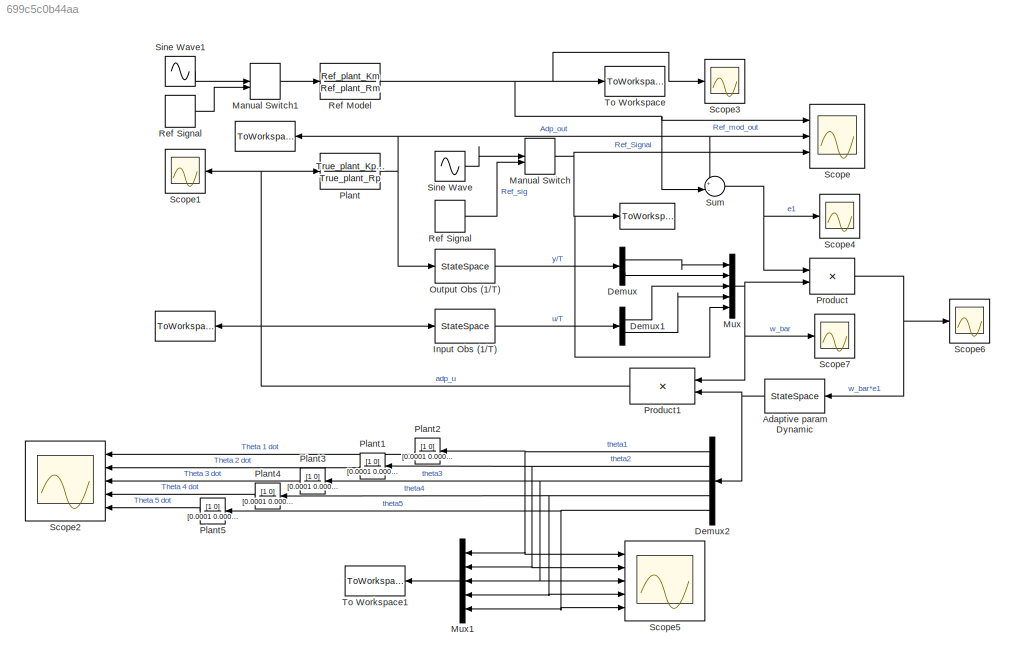
MODEL slx_699c5c0b44aa
KIND model
CONFIG AbsTol = auto
CONFIG EnableMultiTasking = off
CONFIG FixedStep = auto
CONFIG MaxStep = auto
CONFIG MinStep = auto
CONFIG RelTol = 1e-3
CONFIG SampleTimeConstraint = Unconstrained
CONFIG Solver = VariableStepAuto
CONFIG SolverName = VariableStepAuto
CONFIG StartTime = 0.0
CONFIG StopTime = 100
BLOCK [ToWorkspace]  
  Decimation = 3
  FixptAsFi = on
  MaxDataPoints = inf
  Ports = [1]
  SampleTime = 0.001
  Save2DSignal = 3-D array (concatenate along third dimension)
  SaveFormat = Timeseries
  VariableName = Adp_out
BLOCK [ToWorkspace]   
  Decimation = 3
  FixptAsFi = on
  MaxDataPoints = inf
  Ports = [1]
  SampleTime = 0.001
  Save2DSignal = 3-D array (concatenate along third dimension)
  SaveFormat = Timeseries
  VariableName = Ref_signal
BLOCK [ToWorkspace]      
  Decimation = 3
  FixptAsFi = on
  MaxDataPoints = inf
  Ports = [1]
  SampleTime = 0.001
  Save2DSignal = 3-D array (concatenate along third dimension)
  SaveFormat = Timeseries
  VariableName = Adp_u
BLOCK [TransferFcn]  Plant
  Denominator = True_plant_Rp
  Numerator = True_plant_Kp*True_plant_Zp
BLOCK [TransferFcn]  Plant1
  Denominator = [0.0001 0.0001 1]
  Numerator = [1 0]
BLOCK [TransferFcn]  Plant2
  Denominator = [0.0001 0.0001 1]
  Numerator = [1 0]
BLOCK [TransferFcn]  Plant3
  Denominator = [0.0001 0.0001 1]
  Numerator = [1 0]
BLOCK [TransferFcn]  Plant4
  Denominator = [0.0001 0.0001 1]
  Numerator = [1 0]
BLOCK [TransferFcn]  Plant5
  Denominator = [0.0001 0.0001 1]
  Numerator = [1 0]
BLOCK [StateSpace] Adaptive param Dynamic
  A = Atheta
  B = Btheta
  C = Ctheta
  D = Dtheta
  InitialCondition = Theta_init_bar'
  Ports = [1, 1]
BLOCK [Demux] Demux
  DisplayOption = bar
  Outputs = 2
  Ports = [1, 2]
BLOCK [Demux] Demux1
  DisplayOption = bar
  Outputs = 2
  Ports = [1, 2]
BLOCK [Demux] Demux2
  DisplayOption = bar
  Outputs = 5
  Ports = [1, 5]
BLOCK [StateSpace] Input Obs (1//T)
  A = AT_filt_U
  B = BT_filt_U
  C = CT_filt_U
  D = DT_filt_U
  InitialCondition = 0
  Ports = [1, 1]
BLOCK [ManualSwitch] Manual Switch
BLOCK [ManualSwitch] Manual Switch1
BLOCK [Mux] Mux
  DisplayOption = bar
  Inputs = 5
  Ports = [5, 1]
BLOCK [Mux] Mux1
  DisplayOption = bar
  Inputs = 5
  Ports = [5, 1]
BLOCK [StateSpace] Output Obs (1//T)
  A = AT_filt_Y
  B = BT_filt_Y
  C = CT_filt_Y
  D = DT_filt_Y
  InitialCondition = 0
  Ports = [1, 1]
BLOCK [Product] Product
  InputSameDT = off
  OutDataTypeStr = Inherit: Inherit via internal rule
  Ports = [2, 1]
  RndMeth = Floor
  SaturateOnIntegerOverflow = off
BLOCK [Product] Product1
  InputSameDT = off
  Multiplication = Matrix(*)
  OutDataTypeStr = Inherit: Inherit via internal rule
  Ports = [2, 1]
  RndMeth = Floor
  SaturateOnIntegerOverflow = off
BLOCK [TransferFcn] Ref Model
  Denominator = Ref_plant_Rm
  Numerator = Ref_plant_Km
BLOCK [DiscretePulseGenerator] Ref Signal
  Period = 20
  Ports = [0, 1]
  PulseType = Time based
  PulseWidth = 50
BLOCK [DiscretePulseGenerator] Ref Signal 
  Period = 20
  Ports = [0, 1]
  PulseType = Time based
  PulseWidth = 50
BLOCK [Scope] Scope
  Floating = off
  NumInputPorts = 3
  Ports = [3]
  ScopeSpecificationString = Simulink.scopes.TimeScopeBlockCfg('CurrentConfiguration', extmgr.ConfigurationSet(extmgr.Configuration('Core','General UI',true),extmgr.Configuration('Core','Source UI',true),extmgr.Configuration('Sources','WiredSimulink',true),extmgr.Configuration('Visuals','Time Domain',true,'SerializedDisplays',{struct('MinYLimReal','-12.5','MaxYLimReal','12.5','YLabelReal','','MinYLimMag','0.00000','MaxYLimMag...<+1413ch>
BLOCK [Scope] Scope1
  Floating = off
  NumInputPorts = 1
  Ports = [1]
  ScopeSpecificationString = Simulink.scopes.TimeScopeBlockCfg('CurrentConfiguration', extmgr.ConfigurationSet(extmgr.Configuration('Core','General UI',true),extmgr.Configuration('Core','Source UI',true),extmgr.Configuration('Sources','WiredSimulink',true,'DataLoggingVariableName','ScopeData1'),extmgr.Configuration('Visuals','Time Domain',true,'SerializedDisplays',{struct('MinYLimReal','-53.54971','MaxYLimReal','53.54971','YL...<+1466ch>
BLOCK [Scope] Scope2
  Floating = off
  NumInputPorts = 5
  Ports = [5]
  ScopeSpecificationString = Simulink.scopes.TimeScopeBlockCfg('CurrentConfiguration', extmgr.ConfigurationSet(extmgr.Configuration('Core','General UI',true),extmgr.Configuration('Core','Source UI',true),extmgr.Configuration('Sources','WiredSimulink',true,'DataLoggingVariableName','ScopeData1'),extmgr.Configuration('Visuals','Time Domain',true,'SerializedDisplays',{struct('MinYLimReal','-24965954890.97927','MaxYLimReal','2528...<+1911ch>
BLOCK [Scope] Scope3
  Floating = off
  NumInputPorts = 1
  Ports = [1]
  ScopeSpecificationString = Simulink.scopes.TimeScopeBlockCfg('CurrentConfiguration', extmgr.ConfigurationSet(extmgr.Configuration('Core','General UI',true),extmgr.Configuration('Core','Source UI',true),extmgr.Configuration('Sources','WiredSimulink',true,'DataLoggingVariableName','ScopeData2'),extmgr.Configuration('Visuals','Time Domain',true,'SerializedDisplays',{struct('MinYLimReal','-0.00954','MaxYLimReal','1.00715','YLab...<+1692ch>
BLOCK [Scope] Scope4
  Floating = off
  NumInputPorts = 1
  Ports = [1]
  ScopeSpecificationString = Simulink.scopes.TimeScopeBlockCfg('CurrentConfiguration', extmgr.ConfigurationSet(extmgr.Configuration('Core','General UI',true),extmgr.Configuration('Core','Source UI',true),extmgr.Configuration('Sources','WiredSimulink',true,'DataLoggingVariableName','ScopeData1'),extmgr.Configuration('Visuals','Time Domain',true,'SerializedDisplays',{struct('MinYLimReal','-0.00091','MaxYLimReal','0.00091','YLab...<+1430ch>
BLOCK [Scope] Scope5
  Floating = off
  NumInputPorts = 5
  Ports = [5]
  ScopeSpecificationString = Simulink.scopes.TimeScopeBlockCfg('CurrentConfiguration', extmgr.ConfigurationSet(extmgr.Configuration('Core','General UI',true),extmgr.Configuration('Core','Source UI',true),extmgr.Configuration('Sources','WiredSimulink',true,'DataLoggingVariableName','ScopeData1'),extmgr.Configuration('Visuals','Time Domain',true,'SerializedDisplays',{struct('MinYLimReal','-20821.05','MaxYLimReal','187333.45','Y...<+1520ch>
BLOCK [Scope] Scope6
  Floating = off
  NumInputPorts = 1
  Ports = [1]
  ScopeSpecificationString = Simulink.scopes.TimeScopeBlockCfg('CurrentConfiguration', extmgr.ConfigurationSet(extmgr.Configuration('Core','General UI',true),extmgr.Configuration('Core','Source UI',true),extmgr.Configuration('Sources','WiredSimulink',true,'DataLoggingVariableName','ScopeData2'),extmgr.Configuration('Visuals','Time Domain',true,'SerializedDisplays',{struct('MinYLimReal','-0.00069','MaxYLimReal','0.00039','YLab...<+1490ch>
BLOCK [Scope] Scope7
  Floating = off
  NumInputPorts = 1
  Ports = [1]
  ScopeSpecificationString = Simulink.scopes.TimeScopeBlockCfg('CurrentConfiguration', extmgr.ConfigurationSet(extmgr.Configuration('Core','General UI',true),extmgr.Configuration('Core','Source UI',true),extmgr.Configuration('Sources','WiredSimulink',true,'DataLoggingVariableName','ScopeData3'),extmgr.Configuration('Visuals','Time Domain',true,'SerializedDisplays',{struct('MinYLimReal','-12.5','MaxYLimReal','12.5','YLabelReal...<+1640ch>
BLOCK [Sin] Sine Wave
  Amplitude = 10
  Frequency = 0.1
  Ports = [0, 1]
  SampleTime = 0
BLOCK [Sin] Sine Wave1
  Amplitude = 10
  Frequency = 0.1
  Ports = [0, 1]
  SampleTime = 0
BLOCK [Sum] Sum
  IconShape = round
  InputSameDT = off
  Inputs = +-|
  OutDataTypeStr = Inherit: Inherit via internal rule
  Ports = [2, 1]
  SaturateOnIntegerOverflow = off
BLOCK [ToWorkspace] To Workspace
  Decimation = 3
  FixptAsFi = on
  MaxDataPoints = inf
  Ports = [1]
  SampleTime = 0.001
  Save2DSignal = 3-D array (concatenate along third dimension)
  SaveFormat = Timeseries
  VariableName = Ref_mod_out
BLOCK [ToWorkspace] To Workspace1
  Decimation = 2
  FixptAsFi = on
  MaxDataPoints = inf
  Ports = [1]
  SampleTime = 0.0001
  Save2DSignal = 3-D array (concatenate along third dimension)
  SaveFormat = Timeseries
  VariableName = Adp_Gain
LINE  Plant1:1 -> Scope2:2
LINE  Plant2:1 -> Scope2:1
LINE  Plant3:1 -> Scope2:3
LINE  Plant4:1 -> Scope2:4
LINE  Plant5:1 -> Scope2:5
NET  Plant:1 ->  :1, Output Obs (1//T):1, Scope:2, Sum:1
NET Adaptive param Dynamic:1 -> Demux2:1, Product1:2
LINE Demux1:1 -> Mux:3
LINE Demux1:2 -> Mux:4
NET Demux2:1 ->  Plant2:1, Mux1:1, Scope5:1
NET Demux2:2 ->  Plant1:1, Mux1:2, Scope5:2
NET Demux2:3 ->  Plant3:1, Mux1:3, Scope5:3
NET Demux2:4 ->  Plant4:1, Mux1:4, Scope5:4
NET Demux2:5 ->  Plant5:1, Mux1:5, Scope5:5
LINE Demux:1 -> Mux:1
LINE Demux:2 -> Mux:2
LINE Input Obs (1//T):1 -> Demux1:1
LINE Manual Switch1:1 -> Ref Model:1
NET Manual Switch:1 ->   :1, Mux:5, Scope:3
LINE Mux1:1 -> To Workspace1:1
NET Mux:1 -> Product1:1, Product:2, Scope7:1
LINE Output Obs (1//T):1 -> Demux:1
NET Product1:1 ->      :1,  Plant:1, Input Obs (1//T):1, Scope1:1
NET Product:1 -> Adaptive param Dynamic:1, Scope6:1
NET Ref Model:1 -> Scope3:1, Scope:1, Sum:2, To Workspace:1
LINE Ref Signal :1 -> Manual Switch1:2
LINE Ref Signal:1 -> Manual Switch:2
LINE Sine Wave1:1 -> Manual Switch1:1
LINE Sine Wave:1 -> Manual Switch:1
NET Sum:1 -> Product:1, Scope4:1
note: NET lines group one-source signal fan-out (src -> all destinations, sorted); 1:1 wires keep LINE
